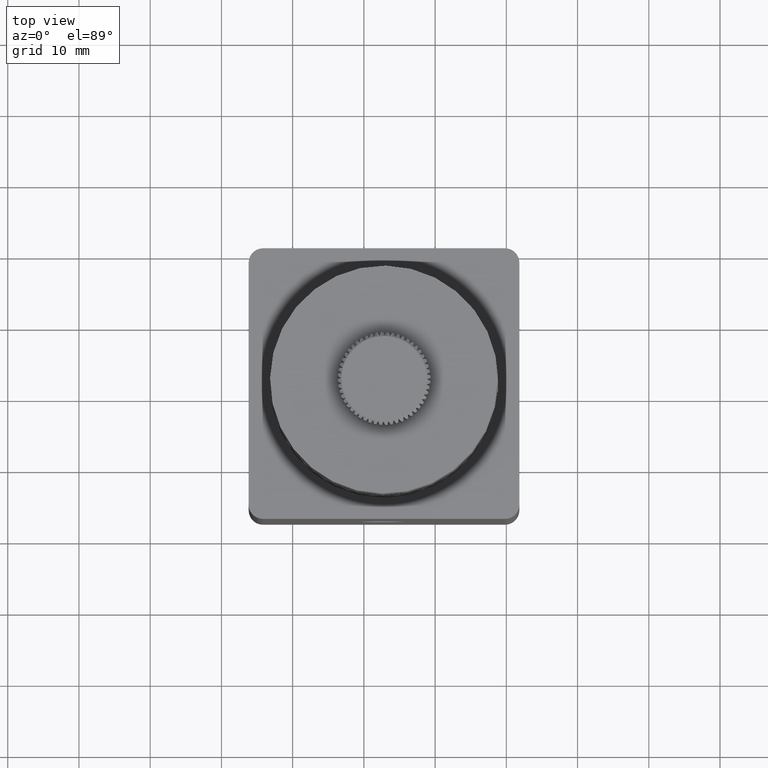
[diagram: clean part render]
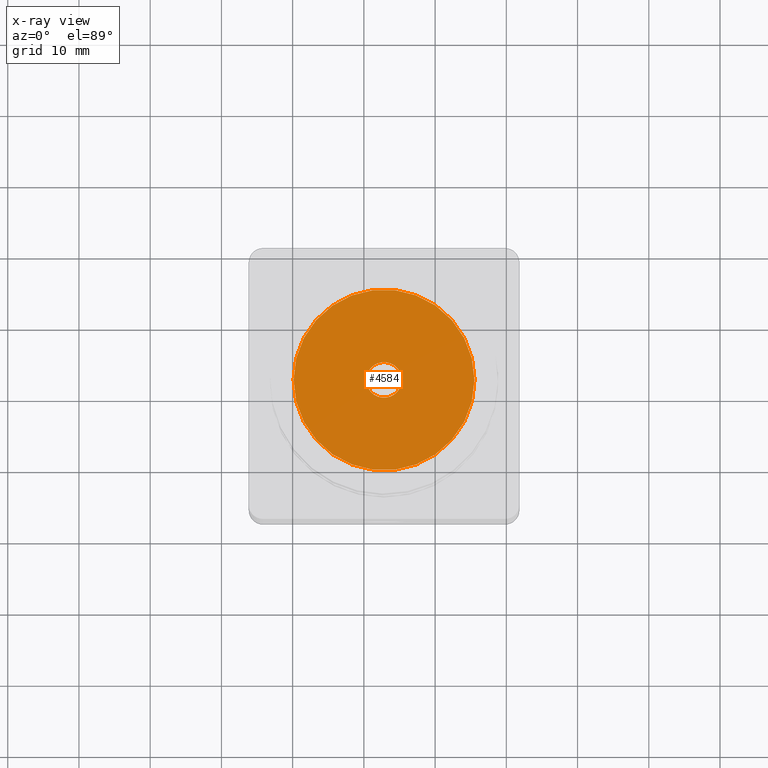
[diagram: x-ray — body ghosted, one internal face saturated and labeled with its STEP entity id]
A machine part, top view, then the same camera in x-ray: the body is ghosted and one INTERNAL B-rep face — a face not visible from any outside direction — is saturated and labeled: STEP entity #4584.
In plain terms, the highlighted planar face has unit normal (0, 0, 1).
Its self-contained STEP definition (entity closure, byte-faithful):
#111 = EDGE_CURVE ( 'NONE', #3597, #1708, #2827, .T. ) ;
#263 = FACE_OUTER_BOUND ( 'NONE', #1186, .T. ) ;
#290 = ORIENTED_EDGE ( 'NONE', *, *, #4856, .T. ) ;
#900 = VERTEX_POINT ( 'NONE', #8159 ) ;
#1078 = EDGE_CURVE ( 'NONE', #900, #2146, #8062, .T. ) ;
#1171 = CARTESIAN_POINT ( 'NONE',  ( 52.82532685223227300, 41.65691868999381600, 75.15325513704507900 ) ) ;
#1186 = EDGE_LOOP ( 'NONE', ( #5194, #290 ) ) ;
#1274 = CIRCLE ( 'NONE', #7871, 12.69999999999999600 ) ;
#1381 = ORIENTED_EDGE ( 'NONE', *, *, #7336, .F. ) ;
#1508 = AXIS2_PLACEMENT_3D ( 'NONE', #3357, #4130, #7281 ) ;
#1708 = VERTEX_POINT ( 'NONE', #7331 ) ;
#1759 = CARTESIAN_POINT ( 'NONE',  ( 65.52532685223226800, 41.65691868999381600, 75.15325513704507900 ) ) ;
#1853 = DIRECTION ( 'NONE',  ( 1.000000000000000000, 0.0000000000000000000, 0.0000000000000000000 ) ) ;
#1864 = CARTESIAN_POINT ( 'NONE',  ( 52.82532685223227300, 41.65691868999381600, 75.15325513704507900 ) ) ;
#1972 = FACE_BOUND ( 'NONE', #2110, .T. ) ;
#2110 = EDGE_LOOP ( 'NONE', ( #1381, #4943 ) ) ;
#2146 = VERTEX_POINT ( 'NONE', #1759 ) ;
#2451 = DIRECTION ( 'NONE',  ( 0.0000000000000000000, 0.0000000000000000000, 1.000000000000000000 ) ) ;
#2618 = CIRCLE ( 'NONE', #6310, 2.500000000000002200 ) ;
#2827 = CIRCLE ( 'NONE', #6611, 2.500000000000002200 ) ;
#3357 = CARTESIAN_POINT ( 'NONE',  ( 52.82532685223227300, 41.65691868999381600, 75.15325513704507900 ) ) ;
#3597 = VERTEX_POINT ( 'NONE', #7861 ) ;
#4130 = DIRECTION ( 'NONE',  ( 0.0000000000000000000, 0.0000000000000000000, 1.000000000000000000 ) ) ;
#4270 = DIRECTION ( 'NONE',  ( -0.0000000000000000000, -0.0000000000000000000, 1.000000000000000000 ) ) ;
#4384 = DIRECTION ( 'NONE',  ( -0.0000000000000000000, -0.0000000000000000000, 1.000000000000000000 ) ) ;
#4584 = ADVANCED_FACE ( 'NONE', ( #1972, #263 ), #5329, .T. ) ;
#4856 = EDGE_CURVE ( 'NONE', #2146, #900, #1274, .T. ) ;
#4943 = ORIENTED_EDGE ( 'NONE', *, *, #111, .F. ) ;
#5001 = DIRECTION ( 'NONE',  ( 1.000000000000000000, 0.0000000000000000000, 0.0000000000000000000 ) ) ;
#5194 = ORIENTED_EDGE ( 'NONE', *, *, #1078, .T. ) ;
#5329 = PLANE ( 'NONE',  #1508 ) ;
#5546 = CARTESIAN_POINT ( 'NONE',  ( 52.82532685223227300, 41.65691868999381600, 75.15325513704507900 ) ) ;
#5703 = AXIS2_PLACEMENT_3D ( 'NONE', #1864, #6316, #6339 ) ;
#6310 = AXIS2_PLACEMENT_3D ( 'NONE', #5546, #4270, #7488 ) ;
#6316 = DIRECTION ( 'NONE',  ( 0.0000000000000000000, 0.0000000000000000000, 1.000000000000000000 ) ) ;
#6339 = DIRECTION ( 'NONE',  ( 1.000000000000000000, 0.0000000000000000000, 0.0000000000000000000 ) ) ;
#6611 = AXIS2_PLACEMENT_3D ( 'NONE', #8283, #4384, #1853 ) ;
#7281 = DIRECTION ( 'NONE',  ( 1.000000000000000000, 0.0000000000000000000, -0.0000000000000000000 ) ) ;
#7331 = CARTESIAN_POINT ( 'NONE',  ( 55.32532685223227300, 41.65691868999381600, 75.15325513704507900 ) ) ;
#7336 = EDGE_CURVE ( 'NONE', #1708, #3597, #2618, .T. ) ;
#7488 = DIRECTION ( 'NONE',  ( 1.000000000000000000, 0.0000000000000000000, 0.0000000000000000000 ) ) ;
#7861 = CARTESIAN_POINT ( 'NONE',  ( 50.32532685223226600, 41.65691868999381600, 75.15325513704507900 ) ) ;
#7871 = AXIS2_PLACEMENT_3D ( 'NONE', #1171, #2451, #5001 ) ;
#8062 = CIRCLE ( 'NONE', #5703, 12.69999999999999600 ) ;
#8159 = CARTESIAN_POINT ( 'NONE',  ( 40.12532685223227700, 41.65691868999381600, 75.15325513704507900 ) ) ;
#8283 = CARTESIAN_POINT ( 'NONE',  ( 52.82532685223227300, 41.65691868999381600, 75.15325513704507900 ) ) ;